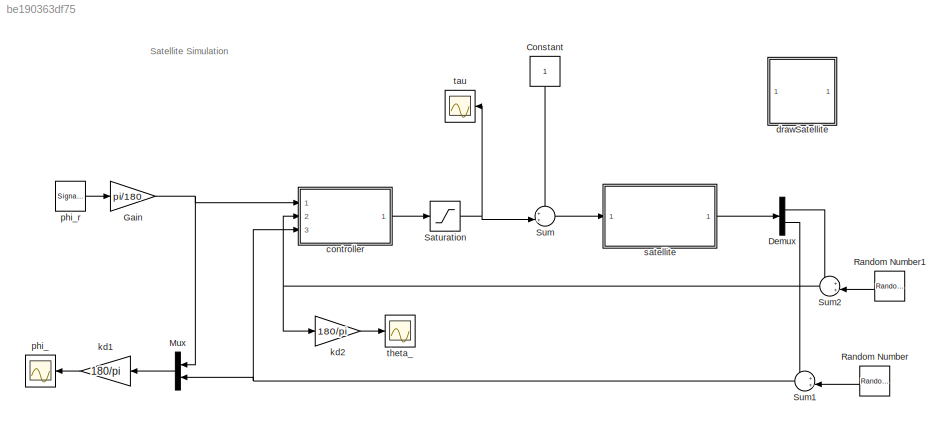
MODEL slx_be190363df75
KIND model
CONFIG AbsTol = auto
CONFIG EnableMultiTasking = on
CONFIG FixedStep = auto
CONFIG InitFcn = addpath ./..\nsatelliteParam\nloopshape_satellite_in\nloopshape_satellite_out
CONFIG MaxStep = auto
CONFIG MinStep = auto
CONFIG RelTol = 1e-3
CONFIG SampleTimeConstraint = Unconstrained
CONFIG Solver = ode45
CONFIG SolverName = ode45
CONFIG StartTime = 0.0
CONFIG StopTime = 200
BLOCK [Constant] Constant
BLOCK [Demux] Demux
  DisplayOption = bar
  Outputs = 2
  Ports = [1, 2]
BLOCK [Gain] Gain
  Gain = pi/180
  OutDataTypeStr = Inherit: Inherit via internal rule
  ParamDataTypeStr = Inherit: Inherit via internal rule
  SaturateOnIntegerOverflow = off
BLOCK [Mux] Mux
  DisplayOption = bar
  Inputs = 2
  Ports = [2, 1]
BLOCK [RandomNumber] Random Number
  SampleTime = 0.1
  Variance = .001^2
BLOCK [RandomNumber] Random Number1
  SampleTime = 0.1
  Variance = .001^2
BLOCK [Saturate] Saturation
  InputPortMap = u0
  LowerLimit = -P.taumax
  Ports = [1, 1]
  UpperLimit = P.taumax
BLOCK [Sum] Sum
  IconShape = round
  InputSameDT = off
  Inputs = ++|
  OutDataTypeStr = Inherit: Inherit via internal rule
  Ports = [2, 1]
  SaturateOnIntegerOverflow = off
BLOCK [Sum] Sum1
  IconShape = round
  InputSameDT = off
  Inputs = ++|
  OutDataTypeStr = Inherit: Inherit via internal rule
  Ports = [2, 1]
  SaturateOnIntegerOverflow = off
BLOCK [Sum] Sum2
  IconShape = round
  InputSameDT = off
  Inputs = ++|
  OutDataTypeStr = Inherit: Inherit via internal rule
  Ports = [2, 1]
  SaturateOnIntegerOverflow = off
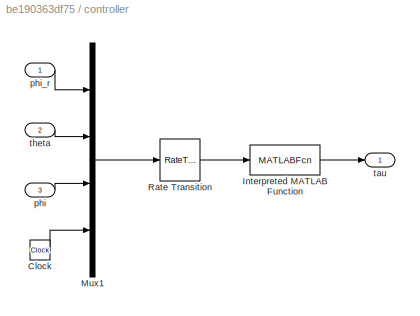
BLOCK [SubSystem] controller
  Ports = [3, 1]
  RequestExecContextInheritance = off
  Variant = off
BLOCK [Clock] controller/Clock
BLOCK [MATLABFcn] controller/Interpreted MATLAB Function
  MATLABFcn = satellite_ctrl(u,P)
  OutputDimensions = 1
  Ports = [1, 1]
BLOCK [Mux] controller/Mux1
  DisplayOption = bar
  Ports = [4, 1]
BLOCK [RateTransition] controller/Rate Transition
  OutPortSampleTime = P.Ts
BLOCK [Inport] controller/phi
  IconDisplay = Port number
  Port = 3
BLOCK [Inport] controller/phi_r  
  IconDisplay = Port number
BLOCK [Outport] controller/tau
  IconDisplay = Port number
BLOCK [Inport] controller/theta
  IconDisplay = Port number
  Port = 2
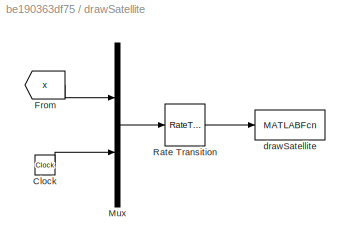
BLOCK [SubSystem] drawSatellite
  Ports = []
  RequestExecContextInheritance = off
  Variant = off
BLOCK [Clock] drawSatellite/Clock
BLOCK [From] drawSatellite/From
  GotoTag = x
  TagVisibility = global
BLOCK [Mux] drawSatellite/Mux
  DisplayOption = bar
  Inputs = 2
  Ports = [2, 1]
BLOCK [RateTransition] drawSatellite/Rate Transition
  OutPortSampleTime = P.t_plot
BLOCK [MATLABFcn] drawSatellite/drawSatellite
  MATLABFcn = satellite_animation(u, P)
  OutputDimensions = 0
  Ports = [1]
BLOCK [Gain] kd1
  Gain = 180/pi
  OutDataTypeStr = Inherit: Inherit via internal rule
  ParamDataTypeStr = Inherit: Inherit via internal rule
  SaturateOnIntegerOverflow = off
BLOCK [Gain] kd2
  Gain = 180/pi
  OutDataTypeStr = Inherit: Inherit via internal rule
  ParamDataTypeStr = Inherit: Inherit via internal rule
  SaturateOnIntegerOverflow = off
BLOCK [Scope] phi_
  NumInputPorts = 1
  Ports = [1]
  ScopeSpecificationString = Simulink.scopes.TimeScopeBlockCfg('CurrentConfiguration', extmgr.ConfigurationSet(extmgr.Configuration('Core','General UI',true),extmgr.Configuration('Core','Source UI',true),extmgr.Configuration('Sources','WiredSimulink',true,'DataLoggingVariableName','ScopeData1','DataLoggingSaveFormat','StructureWithTime','DataLoggingDecimation','1','DataLoggingDecimateData',true),extmgr.Configuration('Visuals'...<+1753ch>
BLOCK [SignalGenerator] phi_r
  Amplitude = 15
  Frequency = .01
  Ports = [0, 1]
  WaveForm = square
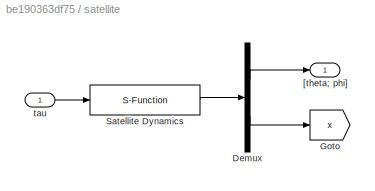
BLOCK [SubSystem] satellite
  Ports = [1, 1]
  RequestExecContextInheritance = off
  Variant = off
BLOCK [Demux] satellite/Demux
  DisplayOption = bar
  Outputs = [2;4]
  Ports = [1, 2]
BLOCK [Goto] satellite/Goto
  GotoTag = x
  TagVisibility = global
BLOCK [S-Function] satellite/Satellite Dynamics
  EnableBusSupport = off
  FunctionName = satellite_dynamics
  Parameters = P
  Ports = [1, 1]
  SFcnIsStateOwnerBlock = off
  SFunctionDeploymentMode = off
BLOCK [Outport] satellite/[theta; phi]
  IconDisplay = Port number
BLOCK [Inport] satellite/tau
  IconDisplay = Port number
BLOCK [Scope] tau
  NumInputPorts = 1
  Ports = [1]
  ScopeSpecificationString = Simulink.scopes.TimeScopeBlockCfg('CurrentConfiguration', extmgr.ConfigurationSet(extmgr.Configuration('Core','General UI',true),extmgr.Configuration('Core','Source UI',true),extmgr.Configuration('Sources','WiredSimulink',true,'DataLoggingSaveFormat','StructureWithTime','DataLoggingDecimation','1','DataLoggingDecimateData',true),extmgr.Configuration('Visuals','Time Domain',true,'SerializedDisplays...<+1692ch>
BLOCK [Scope] theta_
  NumInputPorts = 1
  Ports = [1]
  ScopeSpecificationString = Simulink.scopes.TimeScopeBlockCfg('CurrentConfiguration', extmgr.ConfigurationSet(extmgr.Configuration('Core','General UI',true),extmgr.Configuration('Core','Source UI',true),extmgr.Configuration('Sources','WiredSimulink',true,'DataLoggingVariableName','ScopeData2','DataLoggingSaveFormat','StructureWithTime','DataLoggingDecimation','1','DataLoggingDecimateData',true),extmgr.Configuration('Visuals'...<+1767ch>
ANNOTATION (root): Satellite Simulation
LINE Constant:1 -> Sum:1
LINE Demux:1 -> Sum2:1
LINE Demux:2 -> Sum1:1
NET Gain:1 -> Mux:1, controller:1
LINE Mux:1 -> kd1:1
LINE Random Number1:1 -> Sum2:2
LINE Random Number:1 -> Sum1:2
NET Saturation:1 -> Sum:2, tau:1
NET Sum1:1 -> Mux:2, controller:3
NET Sum2:1 -> controller:2, kd2:1
LINE Sum:1 -> satellite:1
LINE controller/Clock:1 -> controller/Mux1:4
LINE controller/Interpreted MATLAB Function:1 -> controller/tau:1
LINE controller/Mux1:1 -> controller/Rate Transition:1
LINE controller/Rate Transition:1 -> controller/Interpreted MATLAB Function:1
LINE controller/phi:1 -> controller/Mux1:3
LINE controller/phi_r  :1 -> controller/Mux1:1
LINE controller/theta:1 -> controller/Mux1:2
LINE controller:1 -> Saturation:1
LINE drawSatellite/Clock:1 -> drawSatellite/Mux:2
LINE drawSatellite/From:1 -> drawSatellite/Mux:1
LINE drawSatellite/Mux:1 -> drawSatellite/Rate Transition:1
LINE drawSatellite/Rate Transition:1 -> drawSatellite/drawSatellite:1
LINE kd1:1 -> phi_:1
LINE kd2:1 -> theta_:1
LINE phi_r:1 -> Gain:1
LINE satellite/Demux:1 -> satellite/[theta; phi]:1
LINE satellite/Demux:2 -> satellite/Goto:1
LINE satellite/Satellite Dynamics:1 -> satellite/Demux:1
LINE satellite/tau:1 -> satellite/Satellite Dynamics:1
LINE satellite:1 -> Demux:1
note: NET lines group one-source signal fan-out (src -> all destinations, sorted); 1:1 wires keep LINE
